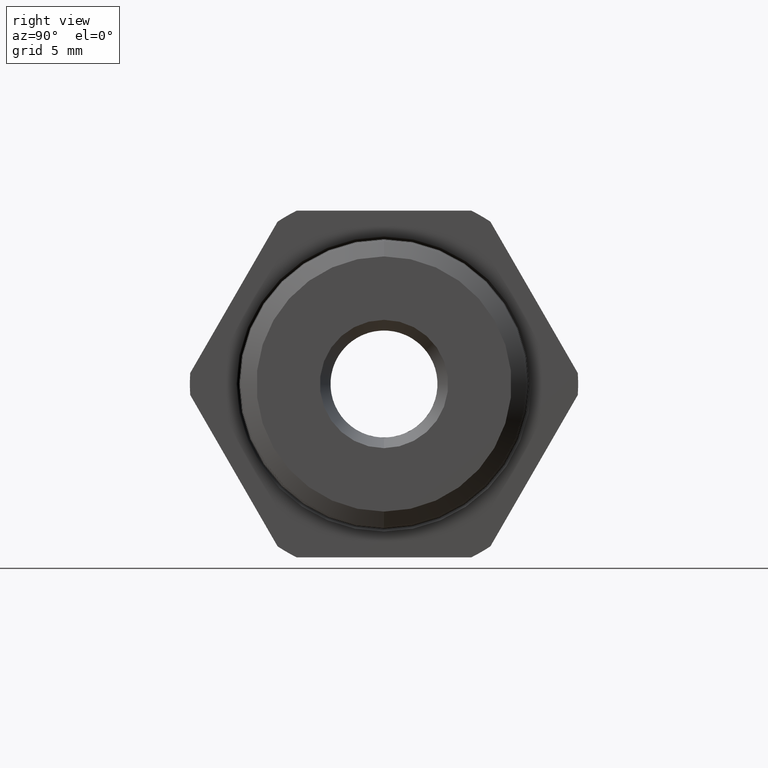
[diagram: clean part render]
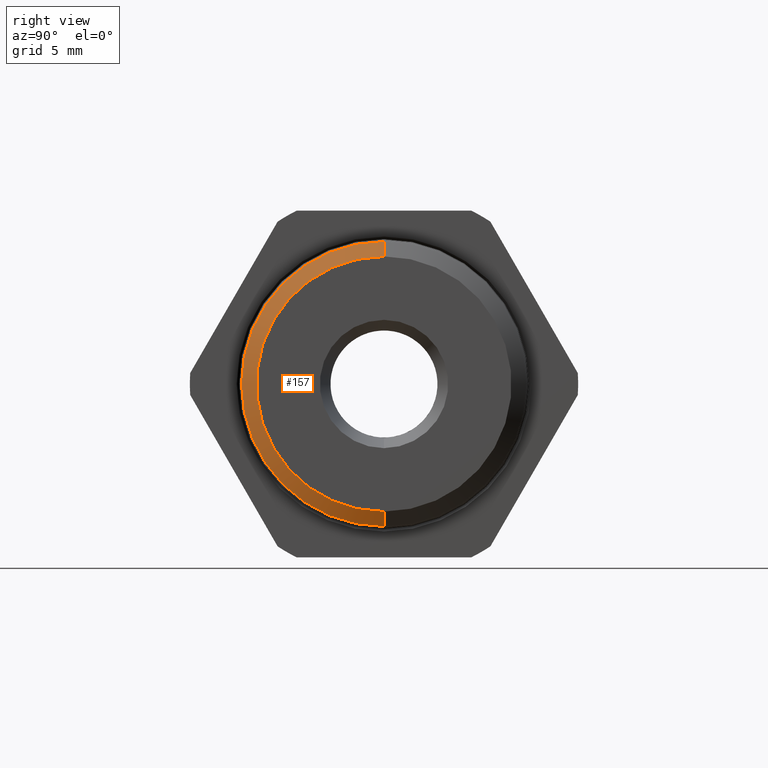
[diagram: same view with one face highlighted and labeled with its STEP entity id]
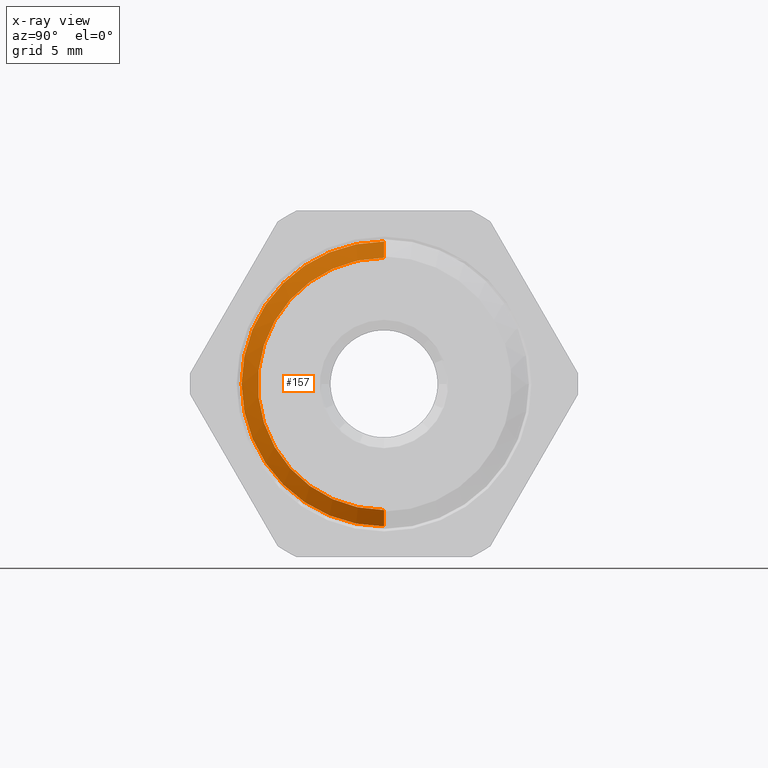
[diagram: x-ray of the same camera — body ghosted, the highlighted face saturated]
A machine part, right view. The second image highlights one B-rep face of the part: STEP entity #157.
The next image is the same camera in x-ray: the body ghosted, the highlighted face saturated — about 0% of this face is hidden behind the body in this view.
In plain terms, the highlighted conical surface has half-angle 60 deg.
Its self-contained STEP definition (entity closure, byte-faithful):
#102 = EDGE_LOOP ( 'NONE', ( #158, #159, #161, #162 ) ) ;
#157 = ADVANCED_FACE ( 'NONE', ( #1209 ), #1207, .T. ) ;
#158 = ORIENTED_EDGE ( 'NONE', *, *, #3251, .F. ) ;
#159 = ORIENTED_EDGE ( 'NONE', *, *, #160, .T. ) ;
#160 = EDGE_CURVE ( 'NONE', #3532, #3540, #1203, .T. ) ;
#161 = ORIENTED_EDGE ( 'NONE', *, *, #3031, .T. ) ;
#162 = ORIENTED_EDGE ( 'NONE', *, *, #462, .T. ) ;
#462 = EDGE_CURVE ( 'NONE', #3539, #3541, #1671, .T. ) ;
#1199 = DIRECTION ( 'NONE',  ( 0.0000000000000000000, 0.0000000000000000000, 1.000000000000000000 ) ) ;
#1200 = DIRECTION ( 'NONE',  ( -1.000000000000000000, 0.0000000000000000000, 0.0000000000000000000 ) ) ;
#1201 = CARTESIAN_POINT ( 'NONE',  ( 0.3079316979139036800, 0.0000000000000000000, 0.0000000000000000000 ) ) ;
#1202 = AXIS2_PLACEMENT_3D ( 'NONE', #1201, #1200, #1199 ) ;
#1203 = CIRCLE ( 'NONE', #1202, 0.3166208800714525600 ) ;
#1204 = DIRECTION ( 'NONE',  ( 0.0000000000000000000, 0.0000000000000000000, 1.000000000000000000 ) ) ;
#1205 = DIRECTION ( 'NONE',  ( -1.000000000000000000, 0.0000000000000000000, 0.0000000000000000000 ) ) ;
#1206 = AXIS2_PLACEMENT_3D ( 'NONE', #1208, #1205, #1204 ) ;
#1207 = CONICAL_SURFACE ( 'NONE', #1206, 0.3649999999999999900, 1.047197551196603600 ) ;
#1208 = CARTESIAN_POINT ( 'NONE',  ( 0.2800000000000000300, 0.0000000000000000000, 0.0000000000000000000 ) ) ;
#1209 = FACE_OUTER_BOUND ( 'NONE', #102, .T. ) ;
#1665 = CARTESIAN_POINT ( 'NONE',  ( 0.2842981469983629200, 0.0000000000000000000, 0.0000000000000000000 ) ) ;
#1666 = AXIS2_PLACEMENT_3D ( 'NONE', #1665, #1727, #1726 ) ;
#1671 = CIRCLE ( 'NONE', #1666, 0.3575553910204357100 ) ;
#1726 = DIRECTION ( 'NONE',  ( 0.0000000000000000000, 0.0000000000000000000, 1.000000000000000000 ) ) ;
#1727 = DIRECTION ( 'NONE',  ( 1.000000000000000000, 0.0000000000000000000, 0.0000000000000000000 ) ) ;
#2565 = DIRECTION ( 'NONE',  ( -0.4999999999999948400, 1.060575238724910500E-016, -0.8660254037844417100 ) ) ;
#2566 = VECTOR ( 'NONE', #2565, 39.37007874015748100 ) ;
#2567 = CARTESIAN_POINT ( 'NONE',  ( 0.2800000000000000300, 4.469960816887839200E-017, -0.3649999999999999900 ) ) ;
#2568 = LINE ( 'NONE', #2567, #2566 ) ;
#2575 = DIRECTION ( 'NONE',  ( -0.4999999999999948400, 0.0000000000000000000, 0.8660254037844417100 ) ) ;
#2576 = VECTOR ( 'NONE', #2575, 39.37007874015748100 ) ;
#2577 = CARTESIAN_POINT ( 'NONE',  ( 0.2800000000000000300, 0.0000000000000000000, 0.3649999999999999900 ) ) ;
#2582 = LINE ( 'NONE', #2577, #2576 ) ;
#3031 = EDGE_CURVE ( 'NONE', #3540, #3539, #2582, .T. ) ;
#3109 = CARTESIAN_POINT ( 'NONE',  ( 0.2842981469983629200, 4.380170051858307700E-017, -0.3575553910204357100 ) ) ;
#3110 = CARTESIAN_POINT ( 'NONE',  ( 0.3079316979139036800, 0.0000000000000000000, 0.3166208800714525600 ) ) ;
#3111 = CARTESIAN_POINT ( 'NONE',  ( 0.2842981469983629200, 0.0000000000000000000, 0.3575553910204357100 ) ) ;
#3122 = CARTESIAN_POINT ( 'NONE',  ( 0.3079316979139036800, 4.128139062268896900E-017, -0.3166208800714525600 ) ) ;
#3251 = EDGE_CURVE ( 'NONE', #3532, #3541, #2568, .T. ) ;
#3532 = VERTEX_POINT ( 'NONE', #3122 ) ;
#3539 = VERTEX_POINT ( 'NONE', #3111 ) ;
#3540 = VERTEX_POINT ( 'NONE', #3110 ) ;
#3541 = VERTEX_POINT ( 'NONE', #3109 ) ;